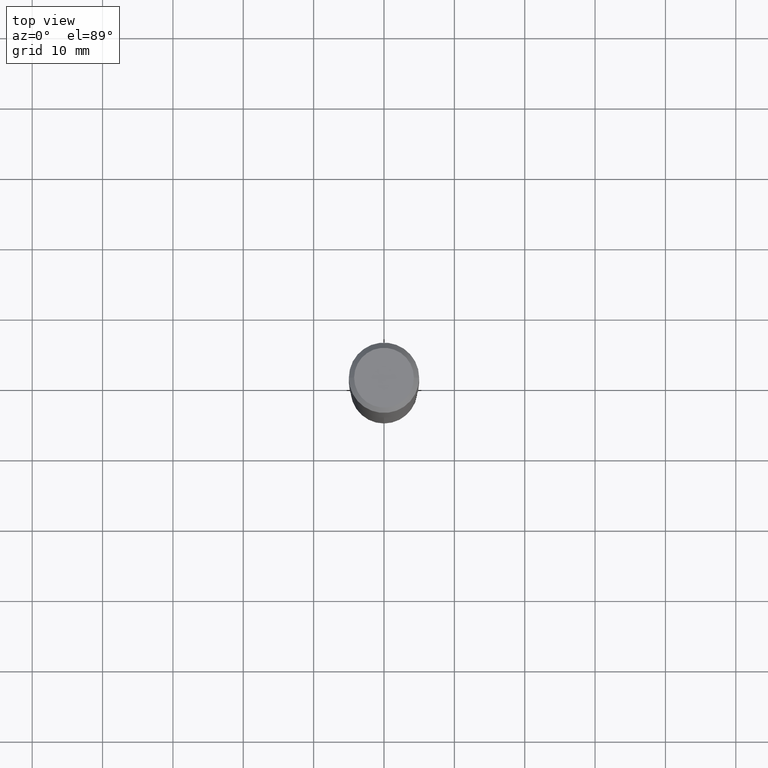
[diagram: clean part render]
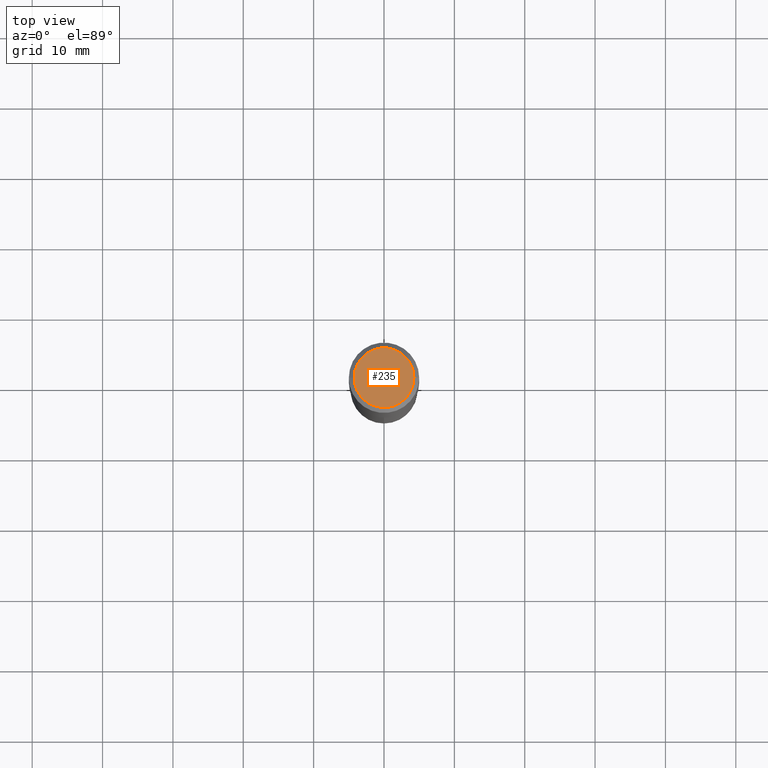
[diagram: same view with one face highlighted and labeled with its STEP entity id]
A machine part, top view. The second image highlights one B-rep face of the part: STEP entity #235.
In plain terms, the highlighted planar face has unit normal (0, -0, -1).
Its self-contained STEP definition (entity closure, byte-faithful):
#7 = CIRCLE ( 'NONE', #490, 0.1673224999999999851 ) ;
#82 = FACE_OUTER_BOUND ( 'NONE', #133, .T. ) ;
#133 = EDGE_LOOP ( 'NONE', ( #238, #363 ) ) ;
#156 = VERTEX_POINT ( 'NONE', #404 ) ;
#176 = DIRECTION ( 'NONE',  ( 1.000000000000000000, -6.982962677686267499E-15, 4.876294436782262290E-29 ) ) ;
#217 = EDGE_CURVE ( 'NONE', #156, #386, #314, .T. ) ;
#224 = DIRECTION ( 'NONE',  ( 1.000000000000000000, -6.982962677686267499E-15, 4.876294436782262290E-29 ) ) ;
#235 = ADVANCED_FACE ( 'NONE', ( #82 ), #310, .F. ) ;
#238 = ORIENTED_EDGE ( 'NONE', *, *, #217, .T. ) ;
#260 = DIRECTION ( 'NONE',  ( -2.445468806185136597E-29, 3.491481338843145583E-15, 1.000000000000000000 ) ) ;
#264 = CARTESIAN_POINT ( 'NONE',  ( 0.1673224999999999851, -1.300749711163072594E-15, 4.096137381456741925E-18 ) ) ;
#294 = AXIS2_PLACEMENT_3D ( 'NONE', #317, #437, #312 ) ;
#303 = CARTESIAN_POINT ( 'NONE',  ( -1.001697619218021790E-46, 1.430158722866389718E-32, 4.096137381448108366E-18 ) ) ;
#305 = EDGE_CURVE ( 'NONE', #386, #156, #7, .T. ) ;
#310 = PLANE ( 'NONE',  #294 ) ;
#312 = DIRECTION ( 'NONE',  ( -1.000000000000000000, 6.982962677686265922E-15, -4.876176775795935793E-29 ) ) ;
#314 = CIRCLE ( 'NONE', #334, 0.1673224999999999851 ) ;
#317 = CARTESIAN_POINT ( 'NONE',  ( -5.008488096090108951E-47, 7.150793614331948590E-33, 2.048068690724054183E-18 ) ) ;
#334 = AXIS2_PLACEMENT_3D ( 'NONE', #303, #260, #224 ) ;
#363 = ORIENTED_EDGE ( 'NONE', *, *, #305, .T. ) ;
#375 = CARTESIAN_POINT ( 'NONE',  ( -1.001697619218021790E-46, 1.430158722866389718E-32, 4.096137381448108366E-18 ) ) ;
#386 = VERTEX_POINT ( 'NONE', #264 ) ;
#404 = CARTESIAN_POINT ( 'NONE',  ( -0.1673224999999999851, 1.219954130253505460E-15, 4.096137381439757534E-18 ) ) ;
#417 = DIRECTION ( 'NONE',  ( -2.445468806185136597E-29, 3.491481338843145583E-15, 1.000000000000000000 ) ) ;
#437 = DIRECTION ( 'NONE',  ( 2.438088387897960049E-29, -3.491481338843145188E-15, -1.000000000000000000 ) ) ;
#490 = AXIS2_PLACEMENT_3D ( 'NONE', #375, #417, #176 ) ;